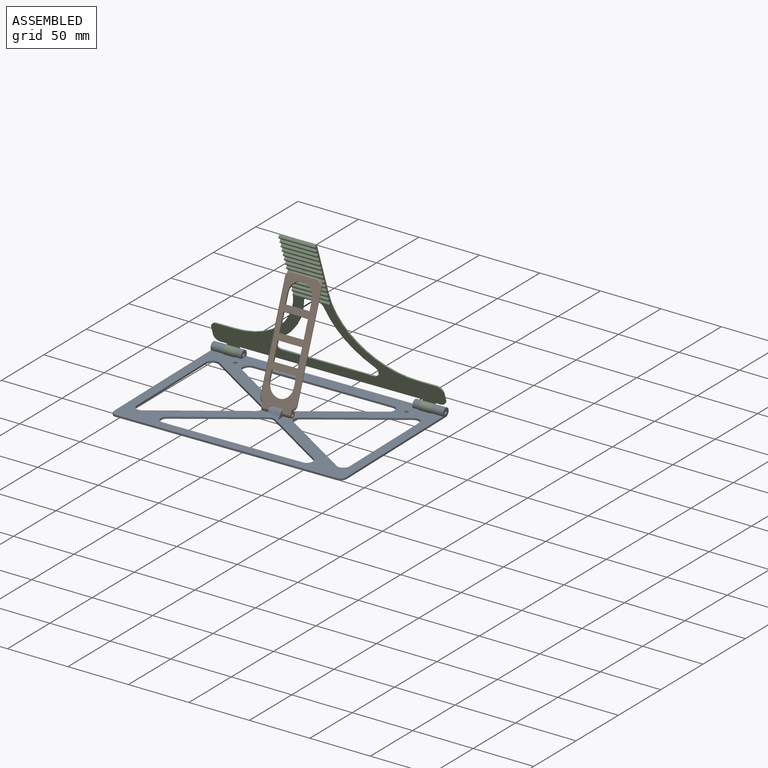
[diagram: assembled view]
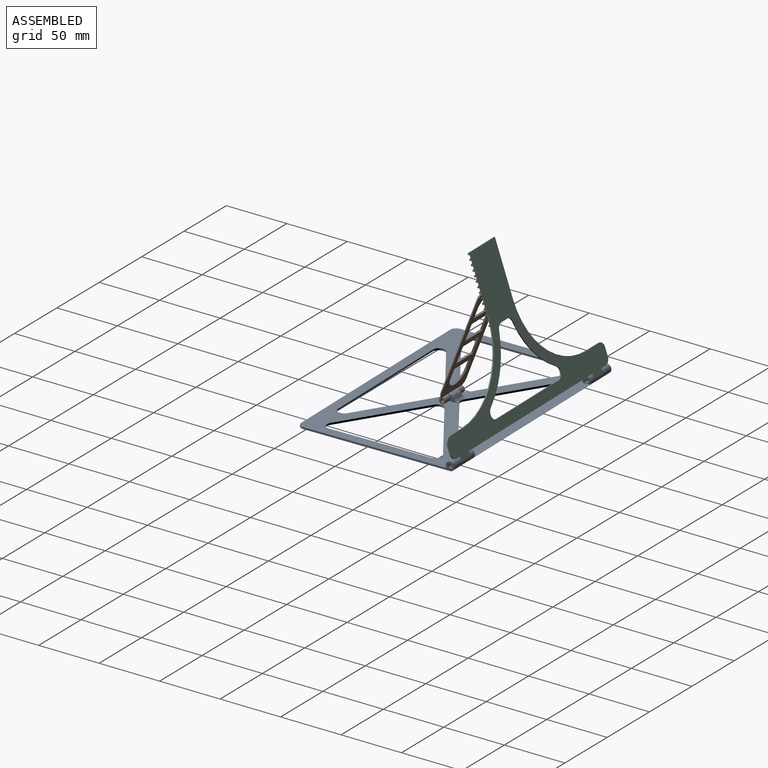
[diagram: assembled view, second angle]
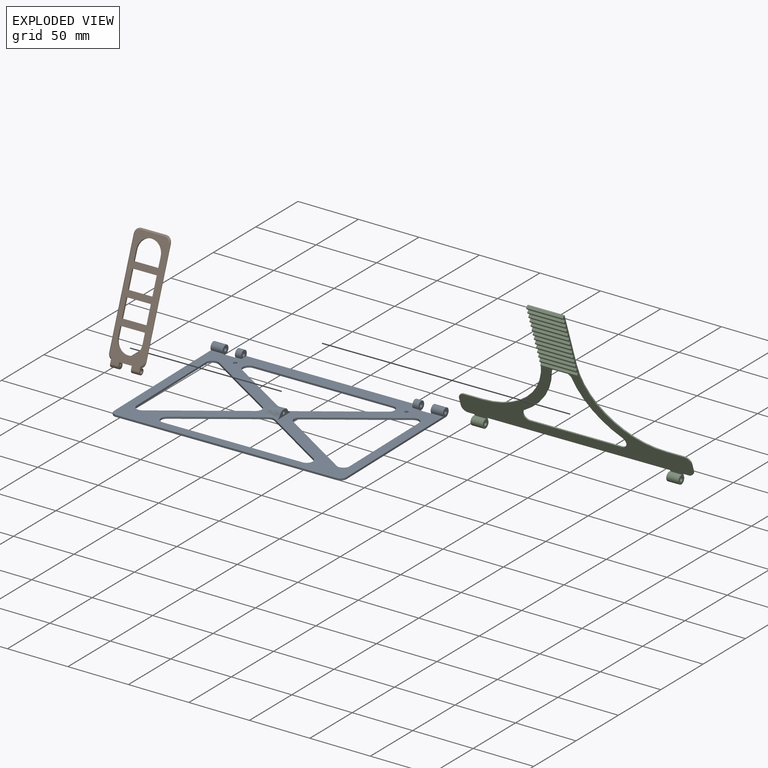
[diagram: exploded view]
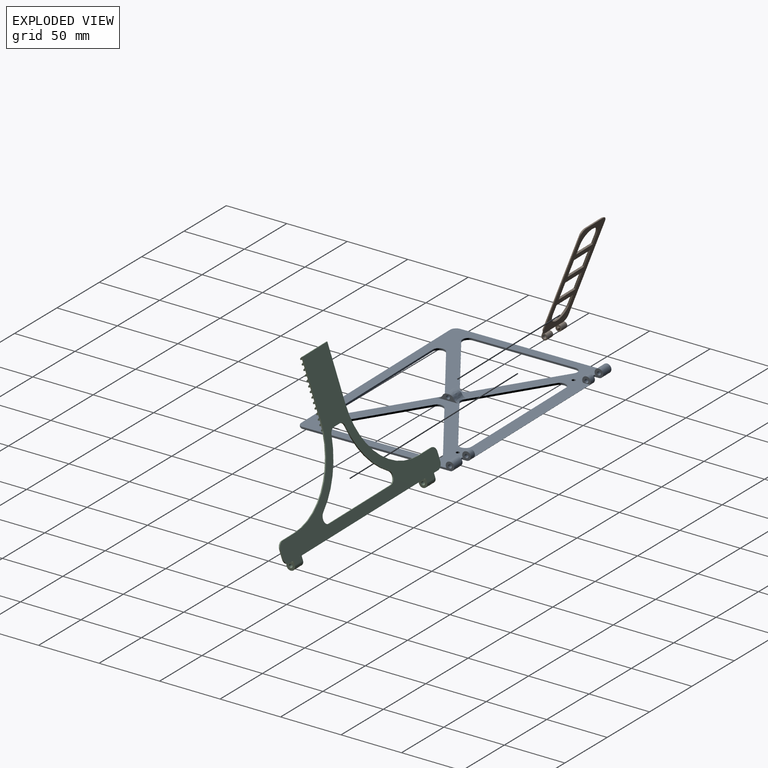
[diagram: exploded view, second angle]
ASSEMBLY  parts=3 mates=2
PART A: 72 faces, bbox 7x190x128.5 mm
  f0: plane 190x127.87mm, normal (1,0,0), area 8988.5mm2, adj f1,f2,f5,f6,f7,f8,f9,f10
  f1: cylinder r=3.5mm len=150mm, axis (0,-1,0), area 657.9mm2, adj f0,f3,f30,f31,f32,f34
  f2: cylinder r=3.5mm len=10mm, axis (0,-1,0), area 186.2mm2, adj f0,f3,f16,f33
  f3: plane 190x125mm, normal (-1,0,0), area 8828.7mm2, adj f1,f2,f5,f6,f7,f8,f9,f10
  f4: cylinder r=1.5mm len=10mm, axis (0,-1,0), area 94.2mm2, adj f16,f33
  f5: cylinder r=3.5mm len=10mm, axis (0,-1,0), area 186.2mm2, adj f0,f3,f9,f35
  f6: plane 83.95x1.5mm, normal (0,-1,0), area 125.9mm2, adj f0,f3,f27,f28
  f7: plane 63.81x41.98mm, normal (0,0.55,0.84), area 114.6mm2, adj f0,f3,f27,f43
  f8: plane 180x1.5mm, normal (0,0,1), area 270mm2, adj f0,f3,f44,f45
  f9: plane 123.5x7mm, normal (0,-1,0), area 208.4mm2, adj f0,f3,f5,f29,f44
  f10: plane 63.81x41.98mm, normal (0,-0.55,-0.84), area 114.6mm2, adj f0,f3,f26,f42
  f11: plane 63.81x41.98mm, normal (0,-0.55,0.84), area 114.6mm2, adj f0,f3,f25,f42
  f12: plane 114.09x1.5mm, normal (0,0,-1), area 171.1mm2, adj f0,f3,f23,f24
  f13: plane 57.08x37.57mm, normal (0,-0.55,0.84), area 102.4mm2, adj f0,f3,f23,f41,f56
  f14: plane 57.08x37.56mm, normal (0,-0.55,-0.84), area 102.4mm2, adj f0,f3,f21,f40,f51
  f15: plane 114.09x1.5mm, normal (0,0,1), area 171.1mm2, adj f0,f3,f21,f22
  f16: plane 123.5x7mm, normal (0,1,0), area 208.4mm2, adj f0,f2,f3,f4,f45
  f17: plane 83.95x1.5mm, normal (0,1,0), area 125.9mm2, adj f0,f3,f25,f26
  f18: plane 57.08x37.57mm, normal (0,0.55,0.84), area 102.4mm2, adj f0,f3,f24,f41,f58
  f19: plane 57.08x37.56mm, normal (0,0.55,-0.84), area 102.4mm2, adj f0,f3,f22,f40,f53
  f20: plane 63.81x41.98mm, normal (0,0.55,-0.84), area 114.6mm2, adj f0,f3,f28,f43
  f21: cylinder r=5mm len=9.18mm, axis (1,0,0), area 19.2mm2, adj f0,f3,f14,f15
  f22: cylinder r=5mm len=9.18mm, axis (1,0,0), area 19.2mm2, adj f0,f3,f15,f19
  f23: cylinder r=5mm len=9.18mm, axis (1,0,0), area 19.2mm2, adj f0,f3,f12,f13
  f24: cylinder r=5mm len=9.18mm, axis (1,0,0), area 19.2mm2, adj f0,f3,f12,f18
  f25: cylinder r=5mm len=7.75mm, axis (1,0,0), area 16.1mm2, adj f0,f3,f11,f17
  f26: cylinder r=5mm len=7.75mm, axis (1,0,0), area 16.1mm2, adj f0,f3,f10,f17
  f27: cylinder r=5mm len=7.75mm, axis (1,0,0), area 16.1mm2, adj f0,f3,f6,f7
  f28: cylinder r=5mm len=7.75mm, axis (1,0,0), area 16.1mm2, adj f0,f3,f6,f20
  f29: cylinder r=1.5mm len=10mm, axis (0,-1,0), area 94.2mm2, adj f9,f35
  f30: plane 7x5.5mm, normal (0,1,0), area 25.4mm2, adj f0,f1,f37
  f31: plane 7x5.5mm, normal (0,-1,0), area 25.4mm2, adj f0,f1,f36
  f32: plane 7x7mm, normal (0,1,0), area 33.6mm2, adj f0,f1,f3,f36,f38
  f33: plane 7x7mm, normal (0,-1,0), area 33.6mm2, adj f0,f2,f3,f4,f38
  f34: plane 7x7mm, normal (0,-1,0), area 33.6mm2, adj f0,f1,f3,f37,f39
  f35: plane 7x7mm, normal (0,1,0), area 33.6mm2, adj f0,f3,f5,f29,f39
  f36: cylinder r=1.5mm len=5mm, axis (0,-1,0), area 47.1mm2, adj f31,f32
  f37: cylinder r=1.5mm len=5mm, axis (0,-1,0), area 47.1mm2, adj f30,f34
  f38: plane 10x1.5mm, normal (0,0,-1), area 15mm2, adj f0,f3,f32,f33
  f39: plane 10x1.5mm, normal (0,0,-1), area 15mm2, adj f0,f3,f34,f35
  f40: cylinder r=5mm len=5.5mm, axis (1,0,0), area 8.7mm2, adj f3,f14,f19,f52
  f41: cylinder r=5mm len=5.5mm, axis (1,0,0), area 8.7mm2, adj f3,f13,f18,f57
  f42: cylinder r=5mm len=8.35mm, axis (1,0,0), area 14.8mm2, adj f0,f3,f10,f11
  f43: cylinder r=5mm len=8.35mm, axis (1,0,0), area 14.8mm2, adj f0,f3,f7,f20
  f44: cylinder r=5mm len=5mm, axis (-1,0,0), area 11.8mm2, adj f0,f3,f8,f9
  f45: cylinder r=5mm len=5mm, axis (1,0,0), area 11.8mm2, adj f0,f3,f8,f16
  f46: plane 18x5mm, normal (0,-1,0), area 40.7mm2, adj f0,f48,f49,f54,f59,f64,f69
  f47: plane 18x5mm, normal (0,1,0), area 40.7mm2, adj f0,f48,f49,f50,f55,f60,f65
  f48: plane 10x1.88mm, normal (1,0,0), area 16.9mm2, adj f46,f47,f60,f61,f62,f63,f64,f65
  f49: cylinder r=1.5mm len=10mm, axis (0,1,0), area 94.2mm2, adj f46,f47
  f50: cylinder r=5mm len=4.48mm, axis (0,1,0), area 2.3mm2, adj f0,f47,f51,f65
  f51: bspline ~5.3x5.28mm, area 10mm2, adj f14,f50,f52,f66
  f52: bspline ~5.5x3.43mm, area 20.5mm2, adj f40,f51,f53,f67
  f53: bspline ~5.17x5.14mm, area 10mm2, adj f19,f52,f54,f68
  f54: cylinder r=5mm len=4.48mm, axis (0,1,0), area 2.3mm2, adj f0,f46,f53,f69
  f55: cylinder r=5mm len=4.48mm, axis (0,-1,0), area 2.3mm2, adj f0,f47,f56,f60
  f56: bspline ~4.62x2.9mm, area 10mm2, adj f13,f55,f57,f61
  f57: bspline ~5.5x3.43mm, area 20.5mm2, adj f41,f56,f58,f62
  f58: bspline ~4.62x2.9mm, area 10mm2, adj f18,f57,f59,f63
  f59: cylinder r=5mm len=4.48mm, axis (0,-1,0), area 2.3mm2, adj f0,f46,f58,f64
  f60: cylinder r=4mm len=3.58mm, axis (0,-1,0), area 1.9mm2, adj f47,f48,f55,f61
  f61: bspline ~6.85x3.88mm, area 9.7mm2, adj f48,f56,f60,f62
  f62: bspline ~6.03x3.76mm, area 22.4mm2, adj f48,f57,f61,f63
  f63: bspline ~5.16x3.7mm, area 9.7mm2, adj f48,f58,f62,f64
  f64: cylinder r=4mm len=3.58mm, axis (0,-1,0), area 1.9mm2, adj f46,f48,f59,f63
  f65: cylinder r=4mm len=3.58mm, axis (0,1,0), area 1.9mm2, adj f47,f48,f50,f66
  f66: bspline ~6.85x3.88mm, area 9.7mm2, adj f48,f51,f65,f67
  f67: bspline ~6.03x3.76mm, area 22.4mm2, adj f48,f52,f66,f68
  f68: bspline ~5.16x3.7mm, area 9.7mm2, adj f48,f53,f67,f69
  f69: cylinder r=4mm len=3.58mm, axis (0,1,0), area 1.9mm2, adj f46,f48,f54,f68
  f70: cylinder r=1.5mm len=3mm, axis (-1,0,0), area 14.1mm2, adj f0,f3
  f71: cylinder r=1.5mm len=3mm, axis (-1,0,0), area 14.1mm2, adj f0,f3
PART B: 49 faces, bbox 30x97.5x5 mm
  f0: plane 8.25x1.5mm, normal (1,0,0), area 12.4mm2, adj f6,f7,f25,f47
  f1: plane 8.25x1.5mm, normal (-1,0,0), area 12.4mm2, adj f6,f7,f25,f47
  f2: plane 15x1.5mm, normal (1,0,0), area 22.5mm2, adj f6,f7,f44,f45
  f3: plane 15x1.5mm, normal (-1,0,0), area 22.5mm2, adj f6,f7,f44,f45
  f4: plane 15x1.5mm, normal (1,0,0), area 22.5mm2, adj f6,f7,f43,f48
  f5: plane 15x1.5mm, normal (-1,0,0), area 22.5mm2, adj f6,f7,f43,f48
  f6: plane 92.71x30mm, normal (0,0,1), area 1515.3mm2, adj f0,f1,f2,f3,f4,f5,f8,f9
  f7: plane 94x28mm, normal (0,0,-1), area 1337mm2, adj f0,f1,f2,f3,f4,f5,f8,f9
  f8: cylinder r=2.5mm len=6.9mm, axis (1,0,0), area 88.4mm2, adj f6,f7,f13,f16
  f9: cylinder r=2.5mm len=6.9mm, axis (1,0,0), area 88.4mm2, adj f6,f7,f14,f15
  f10: plane 20x0.5mm, normal (0,1,0), area 10mm2, adj f6,f20,f21,f33
  f11: plane 82.92x0.5mm, normal (1,0,0), area 41.5mm2, adj f6,f19,f21,f35
  f12: plane 82.92x0.5mm, normal (-1,0,0), area 41.5mm2, adj f6,f18,f20,f31
  f13: plane 5x5mm, normal (1,0,0), area 13.7mm2, adj f6,f7,f8,f17,f42
  f14: plane 5x5mm, normal (-1,0,0), area 13.7mm2, adj f6,f7,f9,f17,f41
  f15: plane 6.12x5mm, normal (1,0,0), area 14.9mm2, adj f6,f7,f9,f19,f36,f39
  f16: plane 6.12x5mm, normal (-1,0,0), area 14.9mm2, adj f6,f7,f8,f18,f30,f37
  f17: plane 10.2x1.5mm, normal (0,-1,0), area 15.3mm2, adj f6,f7,f13,f14
  f18: cylinder r=5mm len=4.58mm, axis (0,0,1), area 2.9mm2, adj f6,f12,f16,f30
  f19: cylinder r=5mm len=4.58mm, axis (0,0,1), area 2.9mm2, adj f6,f11,f15,f36
  f20: cylinder r=5mm len=5mm, axis (0,0,1), area 3.9mm2, adj f6,f10,f12,f32
  f21: cylinder r=5mm len=5mm, axis (0,0,-1), area 3.9mm2, adj f6,f10,f11,f34
  f22: plane 8.25x1.5mm, normal (1,0,0), area 12.4mm2, adj f6,f7,f24,f46
  f23: plane 8.25x1.5mm, normal (-1,0,0), area 12.4mm2, adj f6,f7,f24,f46
  f24: cylinder r=10mm len=20mm, axis (0,0,-1), area 47.1mm2, adj f6,f7,f22,f23
  f25: cylinder r=10mm len=20mm, axis (0,0,1), area 47.1mm2, adj f0,f1,f6,f7
  f26: plane 0.17x0.17mm, normal (-1,0,0), area 0mm2, adj f29
  f27: plane 0.17x0.17mm, normal (1,0,0), area 0mm2, adj f28
  f28: torus R=0.08mm, axis (1,0,0), area 2.3mm2, adj f27,f42
  f29: torus R=0.08mm, axis (1,0,0), area 2.3mm2, adj f26,f41
  f30: cone r=4mm half-angle=45deg, axis (0,0,1), area 7.1mm2, adj f7,f16,f18,f31
  f31: plane 82.92x1mm, normal (-0.71,0,-0.71), area 117.3mm2, adj f7,f12,f30,f32
  f32: cone r=4mm half-angle=45deg, axis (0,0,1), area 10mm2, adj f7,f20,f31,f33
  f33: plane 20x1mm, normal (0,0.71,-0.71), area 28.3mm2, adj f7,f10,f32,f34
  f34: cone r=4mm half-angle=45deg, axis (0,0,1), area 10mm2, adj f7,f21,f33,f35
  f35: plane 82.92x1mm, normal (0.71,0,-0.71), area 117.3mm2, adj f7,f11,f34,f36
  f36: cone r=4mm half-angle=45deg, axis (0,0,1), area 7.1mm2, adj f7,f15,f19,f35
  f37: cylinder r=1.45mm len=6.2mm, axis (-1,0,0), area 56.5mm2, adj f16,f38
  f38: plane 2.9x2.9mm, normal (-1,0,0), area 6.6mm2, adj f37
  f39: cylinder r=1.45mm len=6.2mm, axis (1,0,0), area 56.5mm2, adj f15,f40
  f40: plane 2.9x2.9mm, normal (1,0,0), area 6.6mm2, adj f39
  f41: torus R=1.51mm, axis (-1,0,0), area 5.7mm2, adj f14,f29
  f42: torus R=1.51mm, axis (-1,0,0), area 5.7mm2, adj f13,f28
  f43: plane 20x1.5mm, normal (0,1,0), area 30mm2, adj f4,f5,f6,f7
  f44: plane 20x1.5mm, normal (0,-1,0), area 30mm2, adj f2,f3,f6,f7
  f45: plane 20x1.5mm, normal (0,1,0), area 30mm2, adj f2,f3,f6,f7
  f46: plane 20x1.5mm, normal (0,-1,0), area 30mm2, adj f6,f7,f22,f23
  f47: plane 20x1.5mm, normal (0,1,0), area 30mm2, adj f0,f1,f6,f7
  f48: plane 20x1.5mm, normal (0,-1,0), area 30mm2, adj f4,f5,f6,f7
PART C: 91 faces, bbox 190x128.5x7 mm
  f0: plane 30x2mm, normal (0,0,1), area 60mm2, adj f19,f21,f49,f52
  f1: plane 30x2mm, normal (0,0,1), area 60mm2, adj f19,f21,f51,f55
  f2: plane 30x2mm, normal (0,0,1), area 60mm2, adj f19,f21,f54,f58
  f3: plane 30x2mm, normal (0,0,1), area 60mm2, adj f19,f21,f57,f61
  f4: plane 30x2mm, normal (0,0,1), area 60mm2, adj f19,f21,f60,f64
  f5: plane 30x2mm, normal (0,0,1), area 60mm2, adj f19,f21,f63,f67
  f6: plane 30x2mm, normal (0,0,1), area 60mm2, adj f19,f21,f66,f70
  f7: plane 30x2mm, normal (0,0,1), area 60mm2, adj f19,f21,f69,f73
  f8: plane 30x2mm, normal (0,0,1), area 60mm2, adj f19,f21,f72,f76
  f9: plane 30x2mm, normal (0,0,1), area 60mm2, adj f19,f21,f75,f79
  f10: plane 30x2mm, normal (0,0,1), area 60mm2, adj f19,f21,f78,f82
  f11: plane 6.5x1mm, normal (1,0,0), area 6.5mm2, adj f14,f15,f31,f34
  f12: cylinder r=3.5mm len=10mm, axis (-1,0,0), area 192.8mm2, adj f14,f15,f22,f25
  f13: cylinder r=3.5mm len=10mm, axis (-1,0,0), area 192.8mm2, adj f14,f15,f23,f24
  f14: plane 190x77.55mm, normal (0,0,1), area 3778.7mm2, adj f11,f12,f13,f16,f17,f18,f19,f21
  f15: plane 190x125mm, normal (0,0,-1), area 5327.6mm2, adj f11,f12,f13,f16,f17,f18,f19,f20
  f16: plane 15x1mm, normal (0,1,0), area 15mm2, adj f14,f15,f33,f36
  f17: plane 6.5x1mm, normal (-1,0,0), area 6.5mm2, adj f14,f15,f32,f33
  f18: plane 15x1mm, normal (0,1,0), area 15mm2, adj f14,f15,f34,f35
  f19: plane 46x2.5mm, normal (1,0,0), area 72mm2, adj f0,f1,f2,f3,f4,f5,f6,f7
  f20: plane 30x1mm, normal (0,1,0), area 30mm2, adj f15,f19,f21,f81
  f21: plane 46x2.5mm, normal (-1,0,0), area 72mm2, adj f0,f1,f2,f3,f4,f5,f6,f7
  f22: plane 7x7mm, normal (-1,0,0), area 33.2mm2, adj f12,f14,f15,f27,f28
  f23: plane 7x7mm, normal (1,0,0), area 33.2mm2, adj f13,f14,f15,f26,f28
  f24: plane 7x7mm, normal (-1,0,0), area 33.2mm2, adj f13,f14,f15,f26,f30
  f25: plane 7x7mm, normal (1,0,0), area 33.2mm2, adj f12,f14,f15,f27,f29
  f26: cylinder r=1.5mm len=10mm, axis (-1,0,0), area 94.2mm2, adj f23,f24
  f27: cylinder r=1.5mm len=10mm, axis (-1,0,0), area 94.2mm2, adj f22,f25
  f28: plane 150x1mm, normal (0,-1,0), area 150mm2, adj f14,f15,f22,f23
  f29: plane 5x1mm, normal (0,-1,0), area 5mm2, adj f14,f15,f25,f31
  f30: plane 5x1mm, normal (0,-1,0), area 5mm2, adj f14,f15,f24,f32
  f31: cylinder r=5mm len=5mm, axis (0,0,1), area 7.9mm2, adj f11,f14,f15,f29
  f32: cylinder r=5mm len=5mm, axis (0,0,-1), area 7.9mm2, adj f14,f15,f17,f30
  f33: cylinder r=5mm len=5mm, axis (0,0,-1), area 7.9mm2, adj f14,f15,f16,f17
  f34: cylinder r=5mm len=5mm, axis (0,0,-1), area 7.9mm2, adj f11,f14,f15,f18
  f35: cylinder r=60mm len=60mm, axis (0,0,1), area 94.2mm2, adj f14,f15,f18,f19
  f36: cylinder r=60mm len=60mm, axis (0,0,1), area 94.2mm2, adj f14,f15,f16,f21
  f37: plane 30x1mm, normal (0,0,1), area 30mm2, adj f38,f39,f40,f41
  f38: plane 2x1.5mm, normal (-1,0,0), area 2.3mm2, adj f14,f37,f39,f40
  f39: plane 30x1.5mm, normal (0,0.83,0.55), area 54.1mm2, adj f14,f37,f38,f41
  f40: plane 30x1.5mm, normal (0,-1,0), area 45mm2, adj f14,f37,f38,f41
  f41: plane 2x1.5mm, normal (1,0,0), area 2.3mm2, adj f14,f37,f39,f40
  f42: plane 30x1mm, normal (0,0,1), area 30mm2, adj f43,f44,f45,f46
  f43: plane 2x1.5mm, normal (-1,0,0), area 2.3mm2, adj f14,f42,f44,f45
  f44: plane 30x1.5mm, normal (0,0.83,0.55), area 54.1mm2, adj f14,f42,f43,f46
  f45: plane 30x1.5mm, normal (0,-1,0), area 45mm2, adj f14,f42,f43,f46
  f46: plane 2x1.5mm, normal (1,0,0), area 2.3mm2, adj f14,f42,f44,f45
  f47: plane 30x1mm, normal (0,0,1), area 30mm2, adj f19,f21,f48,f49
  f48: plane 30x1.5mm, normal (0,-1,0), area 45mm2, adj f14,f19,f21,f47
  f49: plane 30x1.5mm, normal (0,0.83,0.55), area 54.1mm2, adj f0,f19,f21,f47
  f50: plane 30x1mm, normal (0,0,1), area 30mm2, adj f19,f21,f51,f52
  f51: plane 30x1.5mm, normal (0,0.83,0.55), area 54.1mm2, adj f1,f19,f21,f50
  f52: plane 30x1.5mm, normal (0,-1,0), area 45mm2, adj f0,f19,f21,f50
  f53: plane 30x1mm, normal (0,0,1), area 30mm2, adj f19,f21,f54,f55
  f54: plane 30x1.5mm, normal (0,0.83,0.55), area 54.1mm2, adj f2,f19,f21,f53
  f55: plane 30x1.5mm, normal (0,-1,0), area 45mm2, adj f1,f19,f21,f53
  f56: plane 30x1mm, normal (0,0,1), area 30mm2, adj f19,f21,f57,f58
  f57: plane 30x1.5mm, normal (0,0.83,0.55), area 54.1mm2, adj f3,f19,f21,f56
  f58: plane 30x1.5mm, normal (0,-1,0), area 45mm2, adj f2,f19,f21,f56
  f59: plane 30x1mm, normal (0,0,1), area 30mm2, adj f19,f21,f60,f61
  f60: plane 30x1.5mm, normal (0,0.83,0.55), area 54.1mm2, adj f4,f19,f21,f59
  f61: plane 30x1.5mm, normal (0,-1,0), area 45mm2, adj f3,f19,f21,f59
  f62: plane 30x1mm, normal (0,0,1), area 30mm2, adj f19,f21,f63,f64
  f63: plane 30x1.5mm, normal (0,0.83,0.55), area 54.1mm2, adj f5,f19,f21,f62
  f64: plane 30x1.5mm, normal (0,-1,0), area 45mm2, adj f4,f19,f21,f62
  f65: plane 30x1mm, normal (0,0,1), area 30mm2, adj f19,f21,f66,f67
  f66: plane 30x1.5mm, normal (0,0.83,0.55), area 54.1mm2, adj f6,f19,f21,f65
  f67: plane 30x1.5mm, normal (0,-1,0), area 45mm2, adj f5,f19,f21,f65
  f68: plane 30x1mm, normal (0,0,1), area 30mm2, adj f19,f21,f69,f70
  f69: plane 30x1.5mm, normal (0,0.83,0.55), area 54.1mm2, adj f7,f19,f21,f68
  f70: plane 30x1.5mm, normal (0,-1,0), area 45mm2, adj f6,f19,f21,f68
  f71: plane 30x1mm, normal (0,0,1), area 30mm2, adj f19,f21,f72,f73
  f72: plane 30x1.5mm, normal (0,0.83,0.55), area 54.1mm2, adj f8,f19,f21,f71
  f73: plane 30x1.5mm, normal (0,-1,0), area 45mm2, adj f7,f19,f21,f71
  f74: plane 30x1mm, normal (0,0,1), area 30mm2, adj f19,f21,f75,f76
  f75: plane 30x1.5mm, normal (0,0.83,0.55), area 54.1mm2, adj f9,f19,f21,f74
  f76: plane 30x1.5mm, normal (0,-1,0), area 45mm2, adj f8,f19,f21,f74
  f77: plane 30x1mm, normal (0,0,1), area 30mm2, adj f19,f21,f78,f79
  f78: plane 30x1.5mm, normal (0,0.83,0.55), area 54.1mm2, adj f10,f19,f21,f77
  f79: plane 30x1.5mm, normal (0,-1,0), area 45mm2, adj f9,f19,f21,f77
  f80: plane 30x1mm, normal (0,0,1), area 30mm2, adj f19,f21,f81,f82
  f81: plane 30x1.5mm, normal (0,0.83,0.55), area 54.1mm2, adj f19,f20,f21,f80
  f82: plane 30x1.5mm, normal (0,-1,0), area 45mm2, adj f10,f19,f21,f80
  f83: cylinder r=68mm len=44.25mm, axis (0,0,1), area 55.8mm2, adj f14,f15,f87,f90
  f84: plane 74.56x1mm, normal (0,1,0), area 74.6mm2, adj f14,f15,f87,f88
  f85: cylinder r=68mm len=44.25mm, axis (0,0,1), area 55.8mm2, adj f14,f15,f88,f89
  f86: plane 7.12x1mm, normal (0,-1,0), area 7.1mm2, adj f14,f15,f89,f90
  f87: cylinder r=5mm len=9.28mm, axis (0,0,1), area 13mm2, adj f14,f15,f83,f84
  f88: cylinder r=5mm len=9.28mm, axis (0,0,1), area 13mm2, adj f14,f15,f84,f85
  f89: cylinder r=5mm len=4.89mm, axis (0,0,1), area 6.8mm2, adj f14,f15,f85,f86
  f90: cylinder r=5mm len=4.89mm, axis (0,0,1), area 6.8mm2, adj f14,f15,f83,f86
PLACE A rot(axis=(0.58,-0.57,0.58),120.5deg) t=(-26,11.82,-52.77)mm fixed
PLACE B rot(axis=(0.01,-0.82,-0.57),179.5deg) t=(-104.84,-54.31,-47.87)mm
PLACE C rot(axis=(1,0.01,0.01),109.1deg) t=(-216.03,12.03,-48.12)mm
MATE revolute B.f8 <-> A.f49  axis (1,0.02,0) through (-124.97,-52.31,-48.77)mm
MATE revolute A.f1 <-> C.f12  axis (-1,-0.02,0) through (-36,11.65,-49.27)mm
